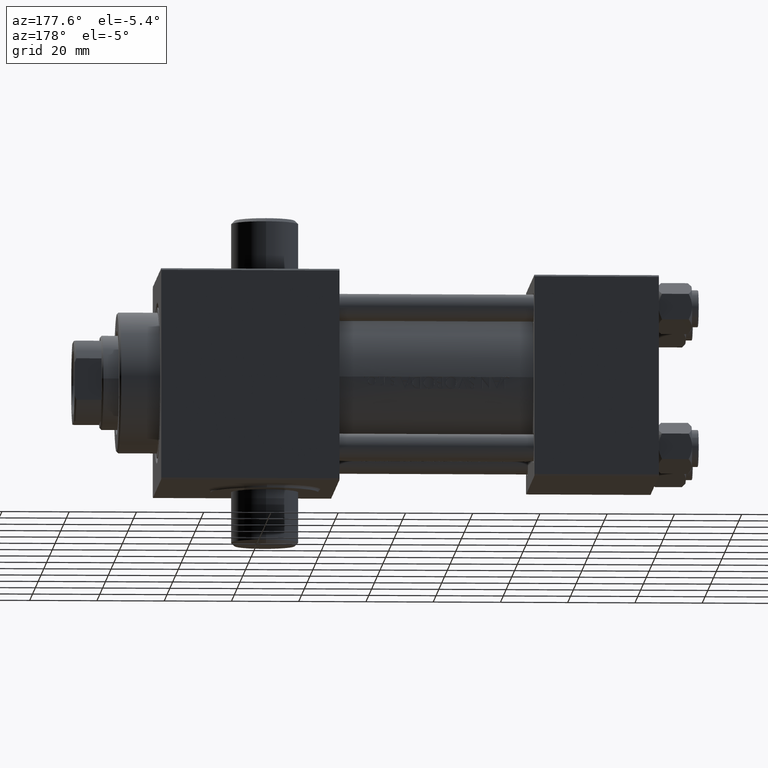
[diagram: clean part render]
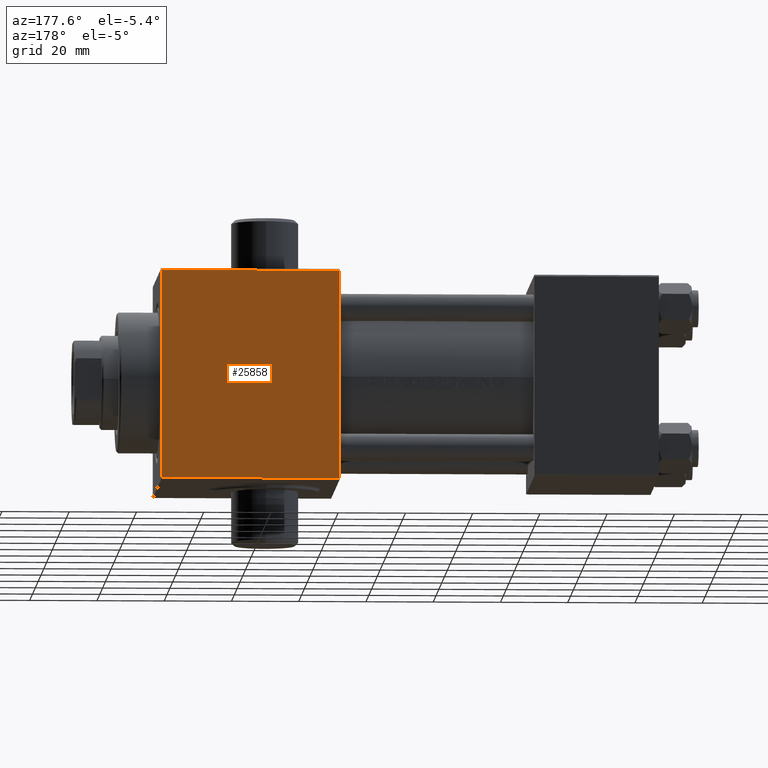
[diagram: same view with one face highlighted and labeled with its STEP entity id]
A machine part, auxiliary view. The second image highlights one B-rep face of the part: STEP entity #25858.
In plain terms, the highlighted planar face has unit normal (0, -1, -0).
Its self-contained STEP definition (entity closure, byte-faithful):
#42 = DIRECTION ( 'NONE',  ( 0.000000000000000000, 1.000000000000000000, 5.507058653894625853E-17 ) ) ;
#1056 = EDGE_CURVE ( 'NONE', #1743, #36337, #37885, .T. ) ;
#1743 = VERTEX_POINT ( 'NONE', #29792 ) ;
#3822 = LINE ( 'NONE', #11506, #13102 ) ;
#4830 = EDGE_LOOP ( 'NONE', ( #29408, #33649, #5417, #29036 ) ) ;
#5180 = VECTOR ( 'NONE', #37419, 1000.000000000000000 ) ;
#5417 = ORIENTED_EDGE ( 'NONE', *, *, #18992, .F. ) ;
#6720 = CARTESIAN_POINT ( 'NONE',  ( 95.00000000000000000, -31.00000000000000711, 29.99999999999998934 ) ) ;
#6786 = LINE ( 'NONE', #25464, #10015 ) ;
#7541 = DIRECTION ( 'NONE',  ( 0.000000000000000000, -1.000000000000000000, -5.507058653894625853E-17 ) ) ;
#7763 = CARTESIAN_POINT ( 'NONE',  ( 95.00000000000000000, 31.00000000000001421, 29.99999999999999289 ) ) ;
#10015 = VECTOR ( 'NONE', #42603, 1000.000000000000000 ) ;
#10495 = EDGE_CURVE ( 'NONE', #36337, #42698, #6786, .T. ) ;
#11506 = CARTESIAN_POINT ( 'NONE',  ( 148.0000000000000000, 31.49999999999998579, 29.99999999999999289 ) ) ;
#11780 = LINE ( 'NONE', #15512, #23002 ) ;
#13102 = VECTOR ( 'NONE', #7541, 1000.000000000000000 ) ;
#15512 = CARTESIAN_POINT ( 'NONE',  ( 148.0000000000000000, -31.00000000000000711, 29.99999999999998934 ) ) ;
#18992 = EDGE_CURVE ( 'NONE', #1743, #25467, #3822, .T. ) ;
#22051 = DIRECTION ( 'NONE',  ( 1.000000000000000000, 0.000000000000000000, 0.000000000000000000 ) ) ;
#23002 = VECTOR ( 'NONE', #22051, 1000.000000000000000 ) ;
#25464 = CARTESIAN_POINT ( 'NONE',  ( 95.00000000000000000, 31.49999999999998579, 29.99999999999999289 ) ) ;
#25467 = VERTEX_POINT ( 'NONE', #39904 ) ;
#25858 = ADVANCED_FACE ( 'NONE', ( #39131 ), #32777, .F. ) ;
#27320 = CARTESIAN_POINT ( 'NONE',  ( 95.00000000000000000, 31.00000000000001421, 29.99999999999999289 ) ) ;
#29036 = ORIENTED_EDGE ( 'NONE', *, *, #1056, .T. ) ;
#29408 = ORIENTED_EDGE ( 'NONE', *, *, #10495, .T. ) ;
#29792 = CARTESIAN_POINT ( 'NONE',  ( 148.0000000000000000, 31.00000000000001421, 29.99999999999999289 ) ) ;
#30809 = EDGE_CURVE ( 'NONE', #42698, #25467, #11780, .T. ) ;
#31854 = CARTESIAN_POINT ( 'NONE',  ( 148.0000000000000000, 31.49999999999998579, 29.99999999999999289 ) ) ;
#32777 = PLANE ( 'NONE',  #37937 ) ;
#33649 = ORIENTED_EDGE ( 'NONE', *, *, #30809, .T. ) ;
#36337 = VERTEX_POINT ( 'NONE', #7763 ) ;
#37419 = DIRECTION ( 'NONE',  ( -1.000000000000000000, 0.000000000000000000, 0.000000000000000000 ) ) ;
#37885 = LINE ( 'NONE', #27320, #5180 ) ;
#37937 = AXIS2_PLACEMENT_3D ( 'NONE', #31854, #46177, #42 ) ;
#39131 = FACE_OUTER_BOUND ( 'NONE', #4830, .T. ) ;
#39904 = CARTESIAN_POINT ( 'NONE',  ( 148.0000000000000000, -31.00000000000000711, 29.99999999999998934 ) ) ;
#42603 = DIRECTION ( 'NONE',  ( 0.000000000000000000, -1.000000000000000000, -5.507058653894625853E-17 ) ) ;
#42698 = VERTEX_POINT ( 'NONE', #6720 ) ;
#46177 = DIRECTION ( 'NONE',  ( 0.000000000000000000, 5.507058653894625853E-17, -1.000000000000000000 ) ) ;